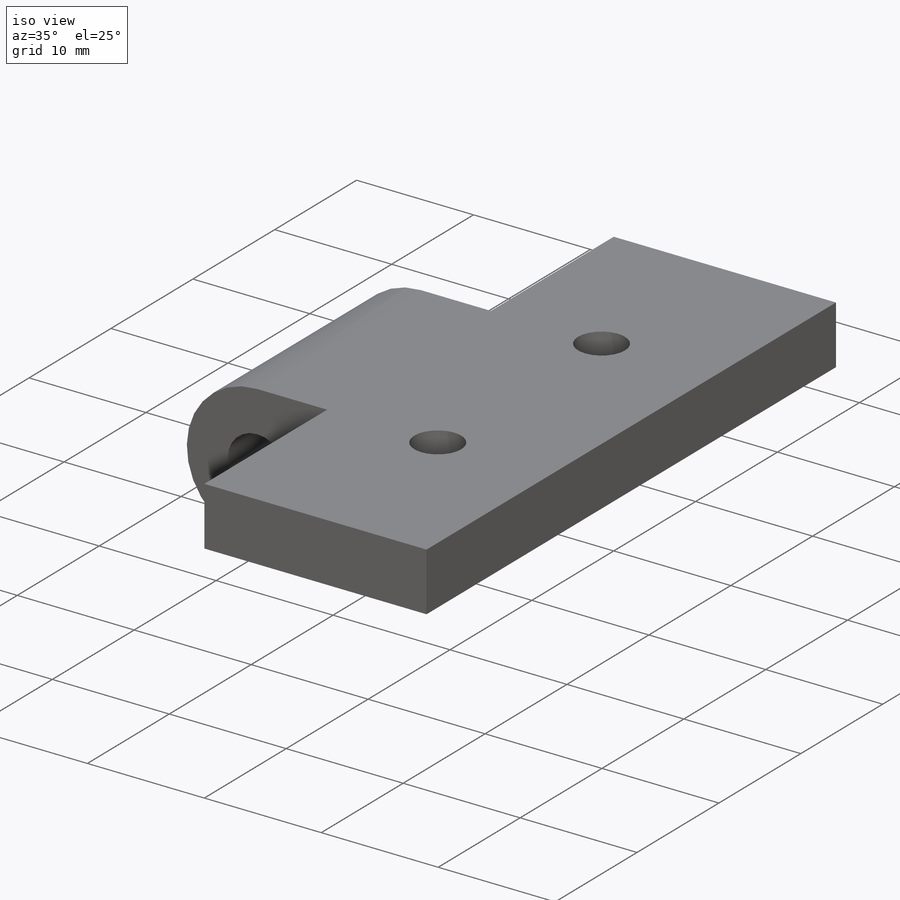
[diagram: iso view]
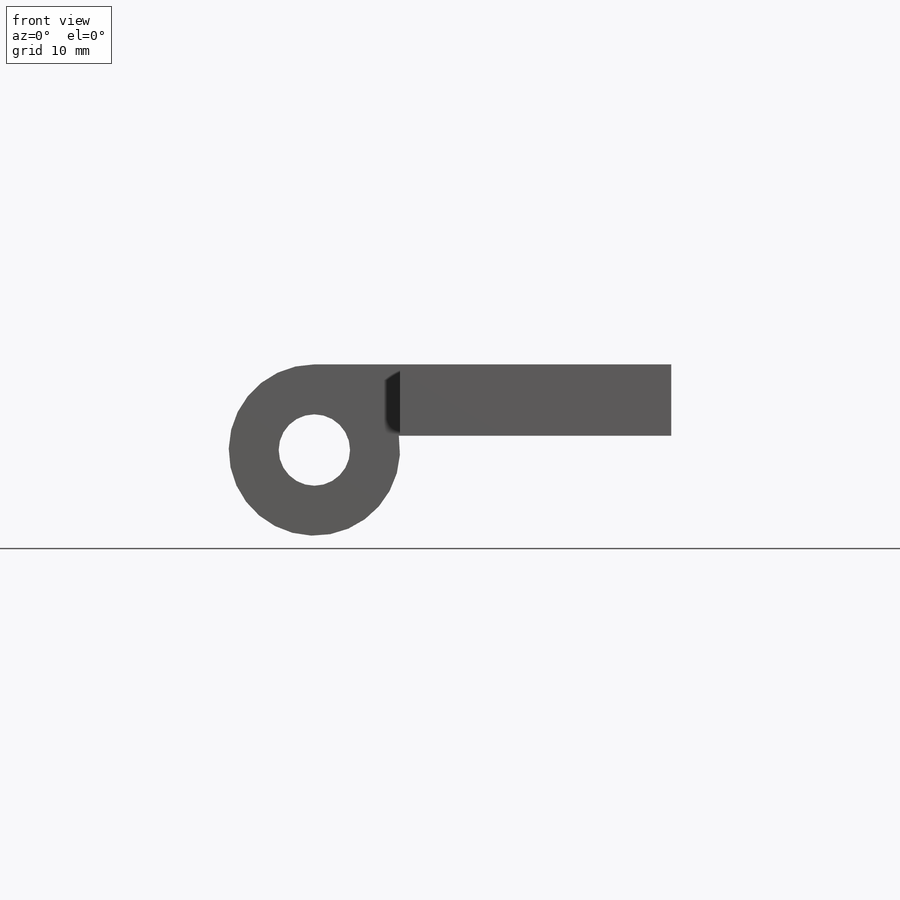
[diagram: front view]
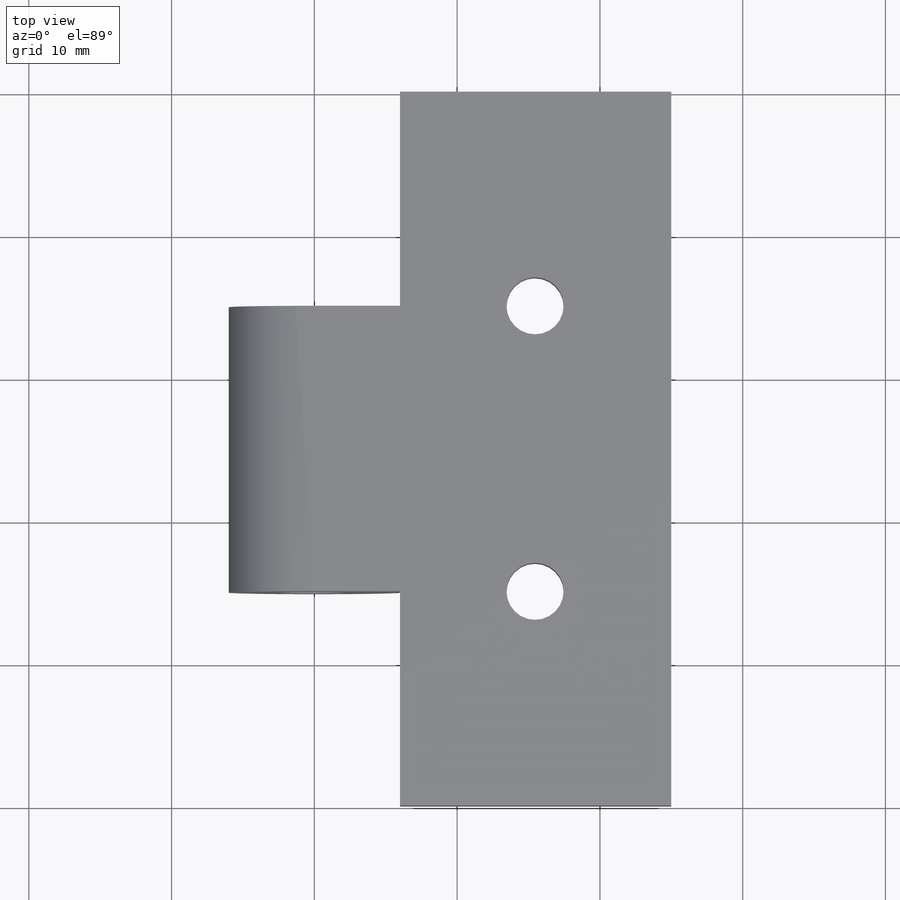
[diagram: top view]
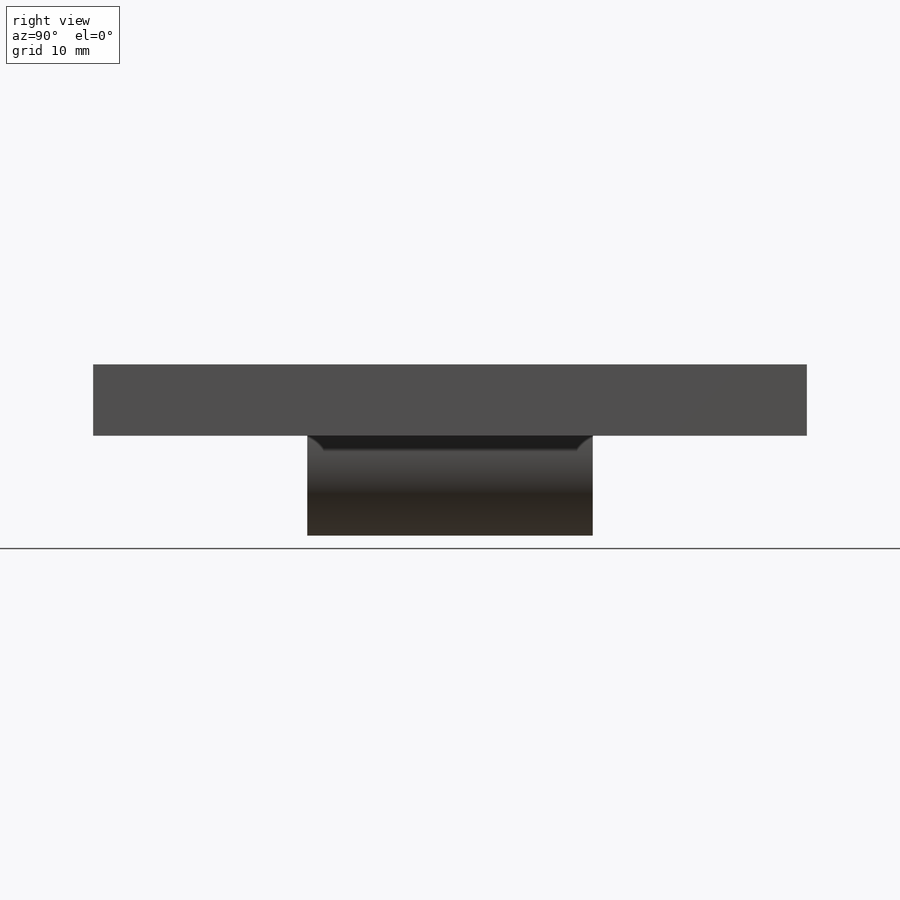
[diagram: right view]
SOLIDWORKS PART (.sldprt)
format: sldprt  version: not decoded by parser v0  size: 320,512 bytes
history: native  units: mm
features: sketch x8, cut_extrude x6, plane x3, extrude x2, material x1 (+10 scaffold rows collapsed)
feature tree (30):
  scaffold x10  (default folders/planes/origin — collapsed)
  material  "材質 <未指定>"
  plane  "前基準面"
  plane  "上基準面"
  plane  "右基準面"
  sketch  "草圖1"  dims[D1=12.0mm D2=5.0mm]
  extrude  "填料-伸長1"  Depth=50mm
  sketch  "草圖2"  dims[D1=50.0mm D2=5.0mm]
  extrude  "填料-伸長2"  [1 undecoded]
  sketch  "草圖3"
  cut_extrude  "除料-伸長1"  [1 undecoded]
  sketch  "草圖8"  dims[c1.D1=~3.631465mm c1.D2=4.0mm c2.D1=20.0mm]
  cut_extrude  "除料-伸長6"  [1 undecoded]
  sketch  "草圖4"  dims[D1=20.0mm]
  cut_extrude  "除料-伸長2"  [1 undecoded]
  sketch  "草圖5"
  cut_extrude  "除料-伸長3"  [1 undecoded]
  cut_extrude  "除料-伸長4"  [1 undecoded]
  sketch  "草圖4<2>"
  sketch  "草圖6"
  cut_extrude  "除料-伸長5"  [1 undecoded]
decode coverage: 5 of 16 modeling features carry decoded parameters
note: ~ marks probable driven/reference dimensions
note: 7 parameter values undecoded
summary: no parameter record found for 7 features
note: suppression state not decoded; provenance and decode notes live in map.json
